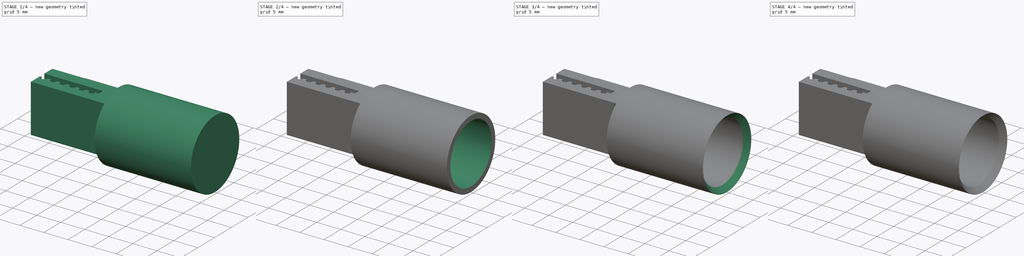
[diagram: build sequence overview — one tinted view per stage of 4, left to right]
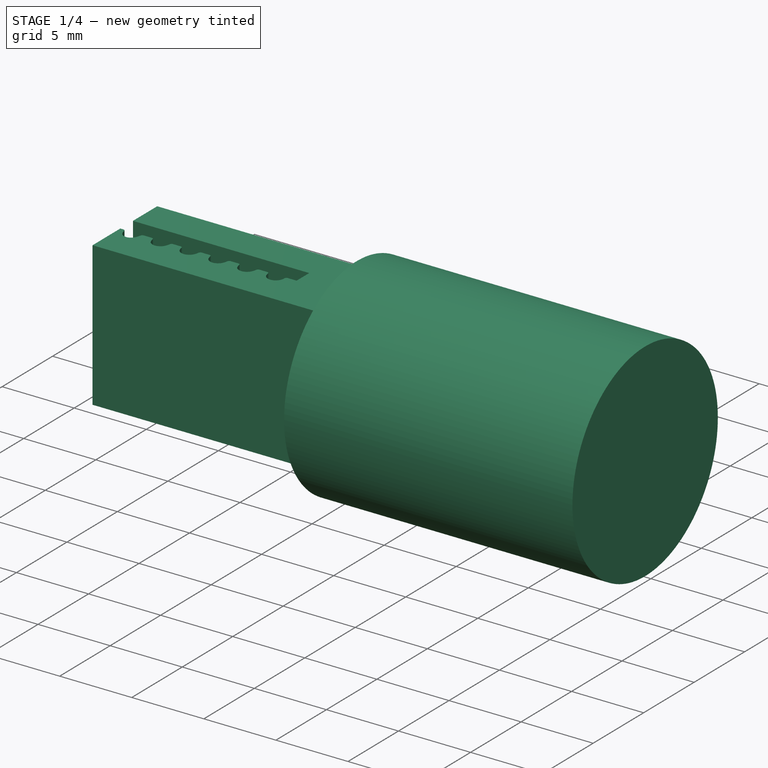
[diagram: stage 1 of 4 — iso view after this stage's code; geometry added in this stage tinted green]
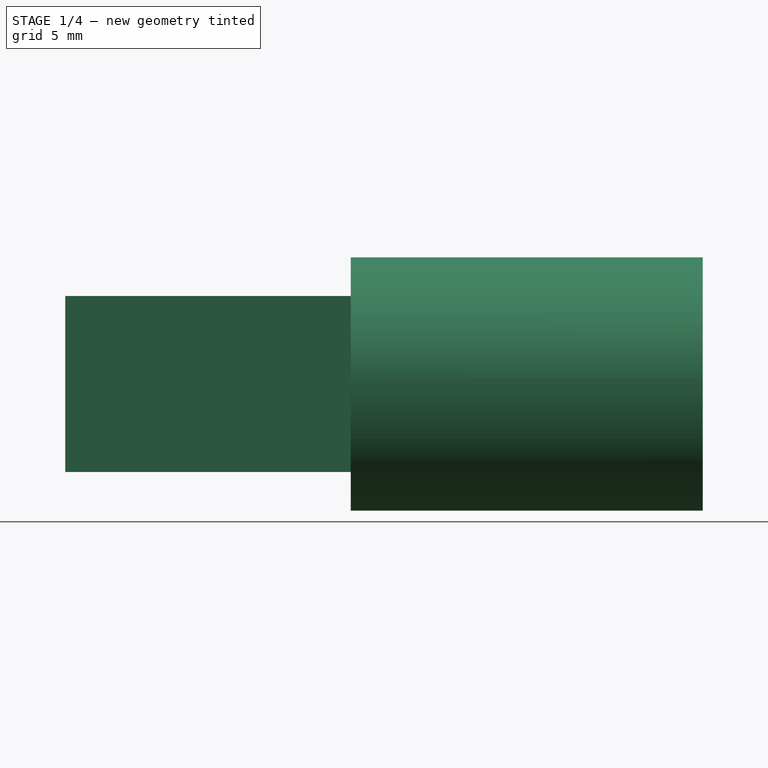
[diagram: stage 1 of 4 — front view after this stage's code; geometry added in this stage tinted green]
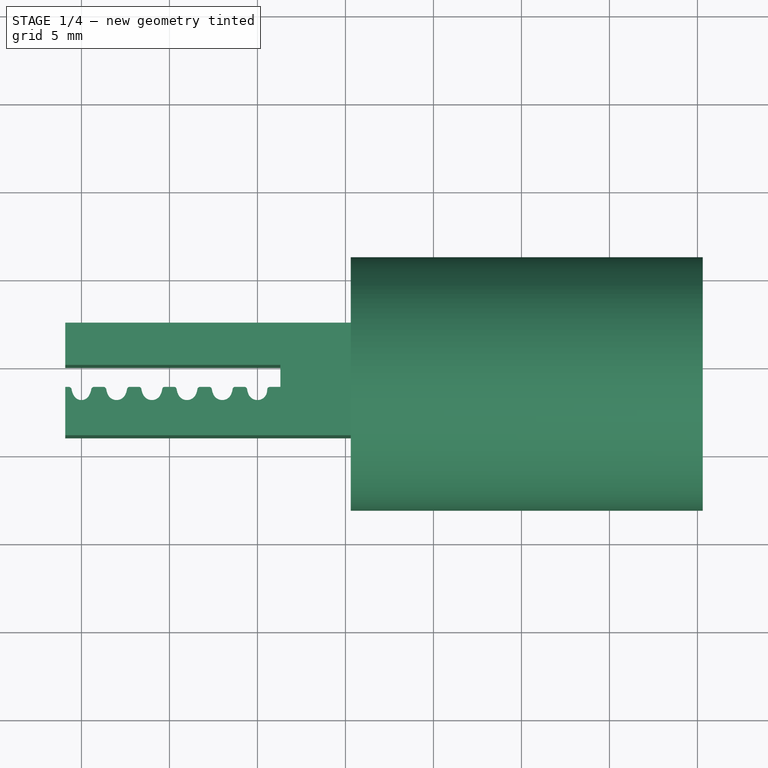
[diagram: stage 1 of 4 — top view after this stage's code; geometry added in this stage tinted green]
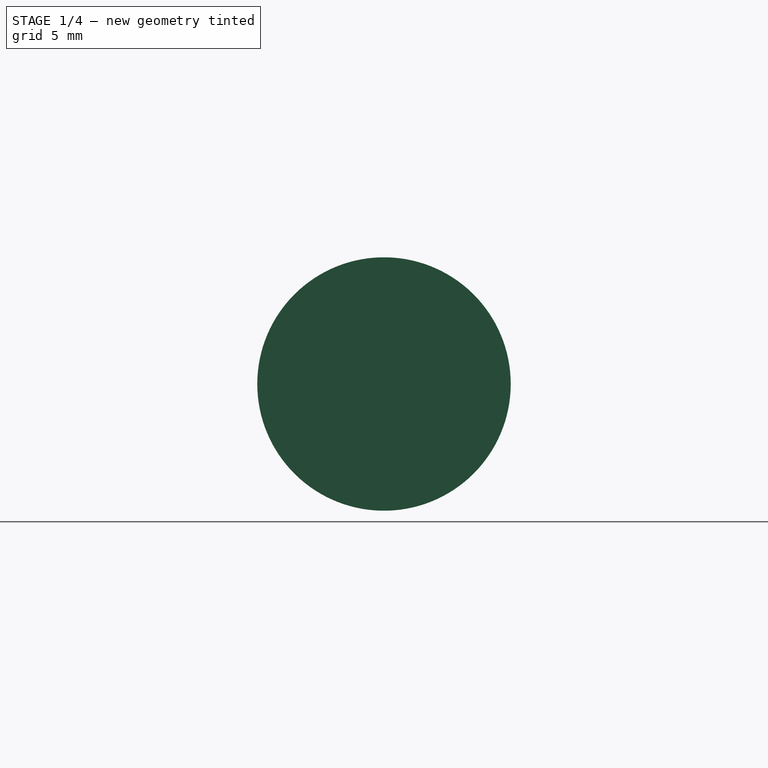
[diagram: stage 1 of 4 — right view after this stage's code; geometry added in this stage tinted green]
FCSTD DOCUMENT  (FreeCAD 0.19R)
Label: GT2_Clip
License: All rights reserved
LicenseURL: http://en.wikipedia.org/wiki/All_rights_reserved
objects: Sketcher::SketchObject×6, PartDesign::Pad×4, PartDesign::Plane×3, PartDesign::Pocket×2, PartDesign::Chamfer×2, PartDesign::Body×2, PartDesign::Fillet×1
note: 29 computed .brp shape members not serialized (recipe doc carries the construction recipe); baked Part::Feature solids carry a one-line shape summary decoded from their .brp

FEATURE [PartDesign::Body] Body  label="Slotted"
  Group = -> [Sketch,Pad,DatumPlane,Sketch001,Pad001,Sketch002,Pocket,Chamfer]
  Origin = -> Origin
  Tip = -> Chamfer
FEATURE [Sketcher::SketchObject] Sketch003
  MapMode = 5
  Support = -> [XY_Plane001]
  sketch-geometry (46):
    g0: LineSegment [constr] StartX=-44.4816 StartY=-2 StartZ=0 EndX=7.22751 EndY=-2 EndZ=0
    g1: LineSegment [constr] StartX=-13.5747 StartY=-1.25 StartZ=0 EndX=6.82881 EndY=-1.25 EndZ=0
    g2: ArcOfCircle CenterX=0.4 CenterY=-1.25 CenterZ=0 NormalX=0 NormalY=0 NormalZ=1 AngleXU=0 Radius=0.997214 StartAngle=3.27272 EndAngle=3.60524
    g3: ArcOfCircle CenterX=0 CenterY=-1.45 CenterZ=0 NormalX=0 NormalY=0 NormalZ=1 AngleXU=0 Radius=0.55 StartAngle=3.60524 EndAngle=5.91517
    g4: ArcOfCircle CenterX=-2 CenterY=-1.45 CenterZ=0 NormalX=0 NormalY=0 NormalZ=1 AngleXU=0 Radius=0.55 StartAngle=3.60524 EndAngle=5.81954
    g5: ArcOfCircle CenterX=-1.6 CenterY=-1.25 CenterZ=0 NormalX=0 NormalY=0 NormalZ=1 AngleXU=0 Radius=0.997214 StartAngle=3.27272 EndAngle=3.60524
    g6: LineSegment StartX=-1.26264 StartY=-1.25 StartZ=0 EndX=-0.737365 EndY=-1.25 EndZ=0
    g7: ArcOfCircle CenterX=-0.737365 CenterY=-1.4 CenterZ=0 NormalX=0 NormalY=0 NormalZ=1 AngleXU=0 Radius=0.15 StartAngle=0.131127 EndAngle=1.5708
    g8: ArcOfCircle CenterX=-2.4 CenterY=-1.25 CenterZ=0 NormalX=0 NormalY=0 NormalZ=1 AngleXU=0 Radius=0.997214 StartAngle=5.81954 EndAngle=6.15206
    g9: ArcOfCircle CenterX=-1.26264 CenterY=-1.4 CenterZ=0 NormalX=0 NormalY=0 NormalZ=1 AngleXU=0 Radius=0.15 StartAngle=1.5708 EndAngle=3.01047
    g10: ArcOfCircle CenterX=-4 CenterY=-1.45 CenterZ=0 NormalX=0 NormalY=0 NormalZ=1 AngleXU=0 Radius=0.55 StartAngle=3.60524 EndAngle=5.81954
    g11: LineSegment StartX=-3.26264 StartY=-1.25 StartZ=0 EndX=-2.73736 EndY=-1.25 EndZ=0
    g12: ArcOfCircle CenterX=-2.73736 CenterY=-1.4 CenterZ=0 NormalX=0 NormalY=0 NormalZ=1 AngleXU=0 Radius=0.15 StartAngle=0.131127 EndAngle=1.5708
    g13: ArcOfCircle CenterX=-4.4 CenterY=-1.25 CenterZ=0 NormalX=0 NormalY=0 NormalZ=1 AngleXU=0 Radius=0.997214 StartAngle=5.81954 EndAngle=6.15206
    g14: ArcOfCircle CenterX=-3.26264 CenterY=-1.4 CenterZ=0 NormalX=0 NormalY=0 NormalZ=1 AngleXU=0 Radius=0.15 StartAngle=1.5708 EndAngle=3.01047
    g15: ArcOfCircle CenterX=-3.6 CenterY=-1.25 CenterZ=0 NormalX=0 NormalY=0 NormalZ=1 AngleXU=0 Radius=0.997214 StartAngle=3.27272 EndAngle=3.60524
    g16: ArcOfCircle CenterX=-6 CenterY=-1.45 CenterZ=0 NormalX=0 NormalY=0 NormalZ=1 AngleXU=0 Radius=0.55 StartAngle=3.60524 EndAngle=5.81954
    g17: ArcOfCircle CenterX=-5.6 CenterY=-1.25 CenterZ=0 NormalX=0 NormalY=0 NormalZ=1 AngleXU=0 Radius=0.997214 StartAngle=3.27272 EndAngle=3.60524
    g18: LineSegment StartX=-5.26264 StartY=-1.25 StartZ=0 EndX=-4.73736 EndY=-1.25 EndZ=0
    g19: ArcOfCircle CenterX=-4.73736 CenterY=-1.4 CenterZ=0 NormalX=0 NormalY=0 NormalZ=1 AngleXU=0 Radius=0.15 StartAngle=0.131127 EndAngle=1.5708
    g20: ArcOfCircle CenterX=-6.4 CenterY=-1.25 CenterZ=0 NormalX=0 NormalY=0 NormalZ=1 AngleXU=0 Radius=0.997214 StartAngle=5.81954 EndAngle=6.15206
    g21: ArcOfCircle CenterX=-5.26264 CenterY=-1.4 CenterZ=0 NormalX=0 NormalY=0 NormalZ=1 AngleXU=0 Radius=0.15 StartAngle=1.5708 EndAngle=3.01047
    g22: ArcOfCircle CenterX=-8 CenterY=-1.45 CenterZ=0 NormalX=0 NormalY=0 NormalZ=1 AngleXU=0 Radius=0.55 StartAngle=3.60524 EndAngle=5.81954
    g23: ArcOfCircle CenterX=-7.6 CenterY=-1.25 CenterZ=0 NormalX=0 NormalY=0 NormalZ=1 AngleXU=0 Radius=0.997214 StartAngle=3.28586 EndAngle=3.60524
    g24: LineSegment StartX=-7.26264 StartY=-1.25 StartZ=0 EndX=-6.73736 EndY=-1.25 EndZ=0
    g25: ArcOfCircle CenterX=-6.73736 CenterY=-1.4 CenterZ=0 NormalX=0 NormalY=0 NormalZ=1 AngleXU=0 Radius=0.15 StartAngle=0.131127 EndAngle=1.5708
    g26: ArcOfCircle CenterX=-8.4 CenterY=-1.25 CenterZ=0 NormalX=0 NormalY=0 NormalZ=1 AngleXU=0 Radius=0.997214 StartAngle=5.81954 EndAngle=6.15206
    g27: ArcOfCircle CenterX=-7.26264 CenterY=-1.4 CenterZ=0 NormalX=0 NormalY=0 NormalZ=1 AngleXU=0 Radius=0.15 StartAngle=1.5708 EndAngle=3.01047
    g28: ArcOfCircle CenterX=-0.0676396 CenterY=-1.42392 CenterZ=0 NormalX=0 NormalY=0 NormalZ=1 AngleXU=0 Radius=0.622493 StartAngle=5.91517 EndAngle=6.31415
    g29: ArcOfCircle CenterX=0.704483 CenterY=-1.4 CenterZ=0 NormalX=0 NormalY=0 NormalZ=1 AngleXU=0 Radius=0.15 StartAngle=1.57083 EndAngle=3.17256
    g30: LineSegment StartX=0.704478 StartY=-1.25 StartZ=0 EndX=1.30448 EndY=-1.25 EndZ=0
    g31: LineSegment StartX=1.30448 StartY=-1.25 StartZ=0 EndX=1.30448 EndY=0 EndZ=0
    g32: ArcOfCircle CenterX=-10 CenterY=-1.50979 CenterZ=0 NormalX=0 NormalY=0 NormalZ=1 AngleXU=0 Radius=0.490211 StartAngle=3.7176 EndAngle=5.70718
    g33: ArcOfCircle CenterX=-9.6 CenterY=-1.25 CenterZ=0 NormalX=0 NormalY=0 NormalZ=1 AngleXU=0 Radius=0.96717 StartAngle=3.2897 EndAngle=3.7176
    g34: LineSegment StartX=-9.27782 StartY=-1.25 StartZ=0 EndX=-8.75255 EndY=-1.25 EndZ=0
    g35: ArcOfCircle CenterX=-8.75255 CenterY=-1.41743 CenterZ=0 NormalX=0 NormalY=0 NormalZ=1 AngleXU=0 Radius=0.167433 StartAngle=0.144263 EndAngle=1.5708
    g36: ArcOfCircle CenterX=-10.4 CenterY=-1.25 CenterZ=0 NormalX=0 NormalY=0 NormalZ=1 AngleXU=0 Radius=0.96717 StartAngle=5.70718 EndAngle=6.13507
    g37: ArcOfCircle CenterX=-9.27782 CenterY=-1.41743 CenterZ=0 NormalX=0 NormalY=0 NormalZ=1 AngleXU=0 Radius=0.167433 StartAngle=1.5708 EndAngle=2.99348
    g38: ArcOfCircle CenterX=-10.7222 CenterY=-1.41743 CenterZ=0 NormalX=0 NormalY=0 NormalZ=1 AngleXU=0 Radius=0.167433 StartAngle=0.148111 EndAngle=1.5708
    g39: LineSegment StartX=-10.7222 StartY=-1.25 StartZ=0 EndX=-10.9222 EndY=-1.25 EndZ=0
    g40: LineSegment StartX=-10.9222 StartY=-1.25 StartZ=0 EndX=-10.9222 EndY=-4 EndZ=0
    g41: LineSegment StartX=5.30448 StartY=-4 StartZ=0 EndX=-10.9222 EndY=-4 EndZ=0
    g42: LineSegment StartX=-10.9222 StartY=0 StartZ=0 EndX=1.30448 EndY=0 EndZ=0
    g43: LineSegment StartX=-10.9222 StartY=0 StartZ=0 EndX=-10.9222 EndY=2.4 EndZ=0
    g44: LineSegment StartX=-10.9222 StartY=2.4 StartZ=0 EndX=5.30448 EndY=2.4 EndZ=0
    g45: LineSegment StartX=5.30448 StartY=2.4 StartZ=0 EndX=5.30448 EndY=-4 EndZ=0
  constraints (129):
    c: Horizontal(g0)
    c: Horizontal(g1)
    c: DistanceY(g0,g1) = 0.75
    c: PointOnObject(g2,g1)
    c: PointOnObject(g3,g-2)
    c: Tangent(g3,g0)
    c: Radius(g3) = 0.55
    c: DistanceX(g2) = 0.4
    c: Tangent(g3,g2) = -1.5708
    c: Equal(g3,g4) = 0.55
    c: Tangent(g4,g5) = -1.5708
    c: DistanceX(g4,g3) = 2
    c: Tangent(g4,g0)
    c: PointOnObject(g6,g1)
    c: PointOnObject(g6,g1)
    c: Radius(g7) = 0.15
    c: Tangent(g7,g2) = 1.5708
    c: Tangent(g7,g6) = 1.5708
    c: Tangent(g9,g6) = 1.5708
    c: Tangent(g9,g8) = 1.5708
    c: Tangent(g8,g4) = -1.5708
    c: PointOnObject(g8,g1)
    c: DistanceX(g8,g4) = 0.4
    c: Equal(g7,g12) = 0.15
    c: Tangent(g12,g11) = 1.5708
    c: Tangent(g14,g11) = 1.5708
    c: Tangent(g14,g13) = 1.5708
    c: Tangent(g13,g10) = -1.5708
    c: DistanceX(g13,g10) = 0.4
    c: PointOnObject(g11,g1)
    c: PointOnObject(g11,g1)
    c: Tangent(g10,g0)
    c: DistanceX(g10,g4) = 2
    c: Equal(g4,g10)
    c: Equal(g12,g14)
    c: Equal(g9,g7)
    c: Tangent(g5,g12) = 1.5708
    c: DistanceX(g4,g5) = 0.4
    c: Equal(g5,g8)
    c: Equal(g5,g13)
    c: Tangent(g16,g17) = -1.5708
    c: Equal(g7,g19) = 0.15
    c: Tangent(g19,g15) = 1.5708
    c: Tangent(g19,g18) = 1.5708
    c: Tangent(g21,g18) = 1.5708
    c: Tangent(g21,g20) = 1.5708
    c: Tangent(g20,g16) = -1.5708
    c: DistanceX(g20,g16) = 0.4
    c: Tangent(g22,g23) = -1.5708
    c: Equal(g19,g25) = 0.15
    c: Tangent(g25,g24) = 1.5708
    c: Tangent(g27,g24) = 1.5708
    c: Tangent(g27,g26) = 1.5708
    c: Tangent(g26,g22) = -1.5708
    c: DistanceX(g26,g22) = 0.4
    c: DistanceX(g22,g16) = 2
    c: Equal(g16,g22)
    c: Equal(g25,g27)
    c: Equal(g21,g19)
    c: Tangent(g17,g25) = 1.5708
    c: DistanceX(g16,g17) = 0.4
    c: Equal(g17,g26)
    c: DistanceX(g16,g10) = 2
    c: PointOnObject(g18,g1)
    c: Tangent(g16,g0)
    c: Tangent(g22,g0)
    c: Tangent(g10,g15) = -1.5708
    c: PointOnObject(g24,g1)
    c: Horizontal(g18)
    c: Horizontal(g24)
    c: Equal(g20,g15)
    c: DistanceX(g10,g15) = 0.4
    c: DistanceX(g22,g23) = 0.4
    c: Equal(g15,g13)
    c: Equal(g20,g17)
    c: PointOnObject(g17,g1)
    c: Tangent(g29,g28) = 1.5708
    c: PointOnObject(g29,g1)
    c: Tangent(g3,g28) = -1.5708
    c: Equal(g29,g9)
    c: Tangent(g29,g1)
    c: Coincident(g30,g29)
    c: PointOnObject(g30,g1)
    c: Coincident(g31,g30)
    c: Vertical(g31)
    c: Tangent(g32,g33) = -1.5708
    c: Tangent(g35,g34) = 1.5708
    c: Tangent(g37,g34) = 1.5708
    c: Tangent(g37,g36) = 1.5708
    c: Tangent(g36,g32) = -1.5708
    c: DistanceX(g36,g32) = 0.4
    c: Equal(g35,g37)
    c: Horizontal(g34)
    c: DistanceX(g32,g33) = 0.4
    c: PointOnObject(g34,g1)
    c: Tangent(g23,g35) = 1.5708
    c: DistanceX(g32,g22) = 2
    c: Tangent(g32,g0)
    c: Equal(g34,g24)
    c: PointOnObject(g33,g1)
    c: PointOnObject(g36,g1)
    c: Equal(g23,g26)
    c: Tangent(g33,g38) = 1.5708
    c: Tangent(g38,g1)
    c: PointOnObject(g38,g1)
    c: Equal(g38,g37)
    c: Coincident(g39,g38)
    c: PointOnObject(g39,g1)
    c: Coincident(g40,g39)
    c: Vertical(g40)
    c: Coincident(g41,g40)
    c: Horizontal(g41)
    c: PointOnObject(g42,g-1)
    c: Horizontal(g42)
    c: Coincident(g31,g42)
    c: Coincident(g42,g43)
    c: Vertical(g43)
    c: Coincident(g43,g44)
    c: Horizontal(g44)
    c: Coincident(g44,g45)
    c: Coincident(g45,g41)
    c: Vertical(g45)
    c: Equal(g41,g44)
    c: DistanceY(g0) = -2
    c: DistanceY(g41,g0) = 2
    c: DistanceY(g44) = 2.4
    c: DistanceX(g39,g39) = 0.2
    c: DistanceX(g30,g30) = 0.6
    c: DistanceX(g30,g41) = 4
FEATURE [PartDesign::Pad] Pad002
  Direction = (1,1,1)
  Length = 10
  Length2 = 100
  Midplane = true
  Profile = -> Sketch003
  Type = 0
FEATURE [PartDesign::Plane] DatumPlane001
  AttachmentOffset = pos=(0,0,0) rot=(1,0,0;1.5708rad)
  Length = 60.0304
  MapMode = 5
  Placement = pos=(5.30448,0,0) rot=(0.707107,0.707107,0;3.14159rad)
  ResizeMode = 0
  Support = -> [Pad002]
  Width = 60.3349
FEATURE [PartDesign::Plane] DatumPlane002
  Length = 60
  MapMode = 5
  Placement = pos=(5.30448,0,0) rot=(0.57735,0.57735,0.57735;2.0944rad)
  ResizeMode = 0
  Support = -> [Pad002]
  Width = 60
FEATURE [Sketcher::SketchObject] Sketch004
  MapMode = 5
  Placement = pos=(5.30448,0,0) rot=(0.57735,0.57735,0.57735;2.0944rad)
  Support = -> [DatumPlane002]
  sketch-geometry (1):
    g0: Circle CenterX=-1 CenterY=0 CenterZ=0 NormalX=0 NormalY=0 NormalZ=1 AngleXU=0 Radius=7.2
  constraints (3):
    c: PointOnObject(g0,g-1)
    c: DistanceX(g0,g-1) = 1
    c: Radius(g0) = 7.2
FEATURE [PartDesign::Pad] Pad003
  BaseFeature = -> Pad002
  Direction = (1,1,1)
  Length = 20
  Length2 = 100
  Profile = -> Sketch004
  Type = 0
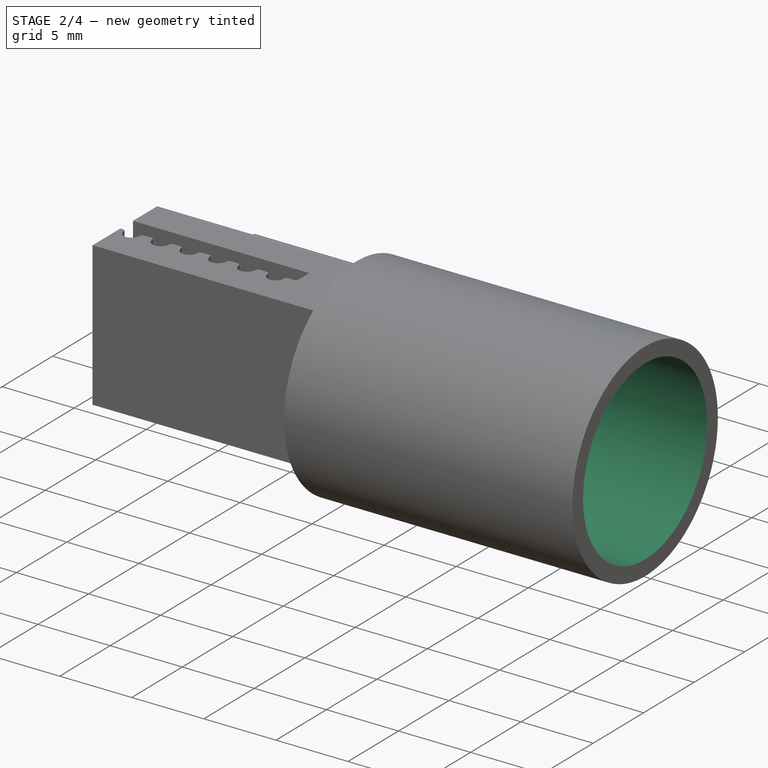
[diagram: stage 2 of 4 — iso view after this stage's code; geometry added in this stage tinted green]
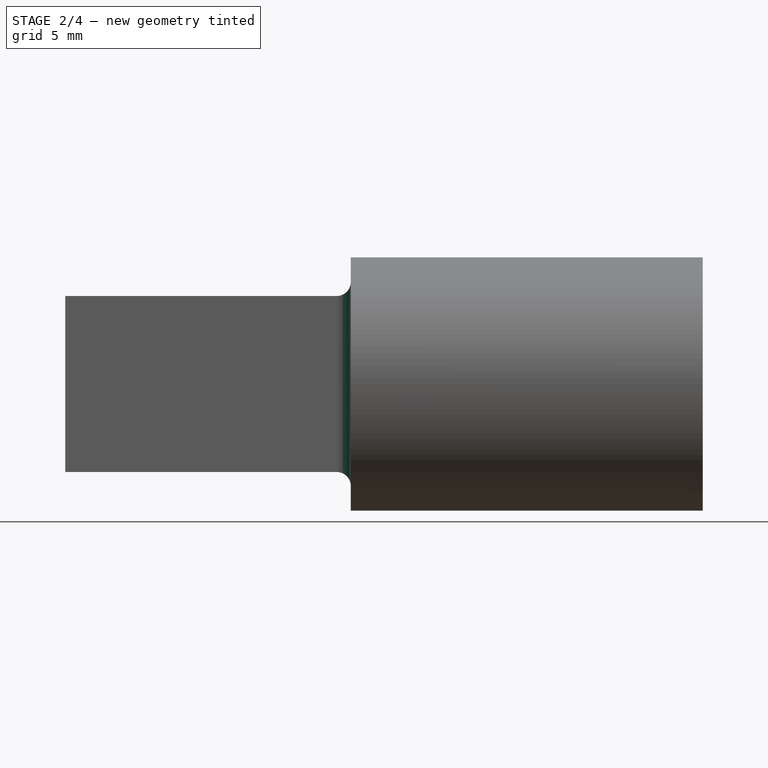
[diagram: stage 2 of 4 — front view after this stage's code; geometry added in this stage tinted green]
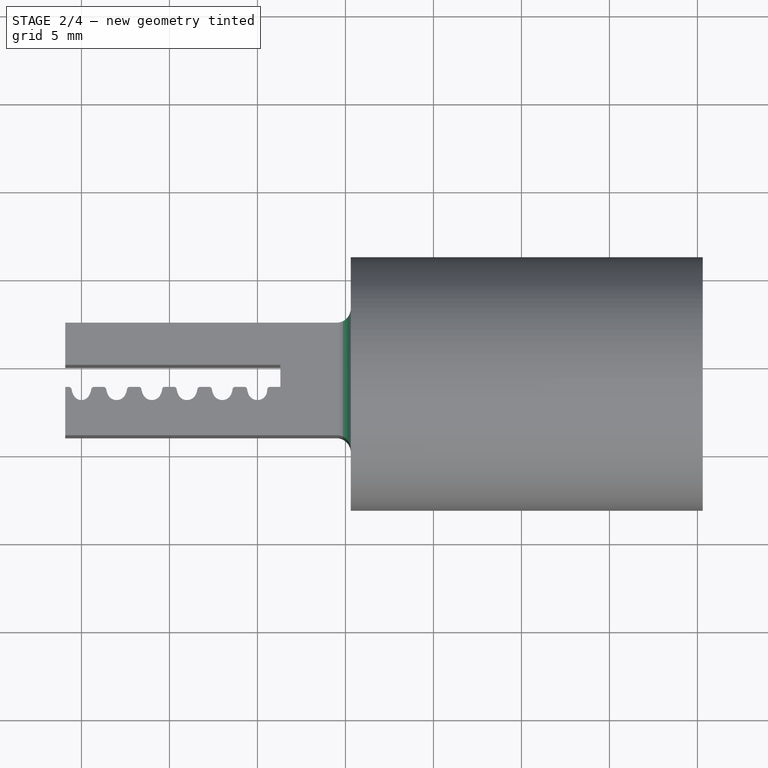
[diagram: stage 2 of 4 — top view after this stage's code; geometry added in this stage tinted green]
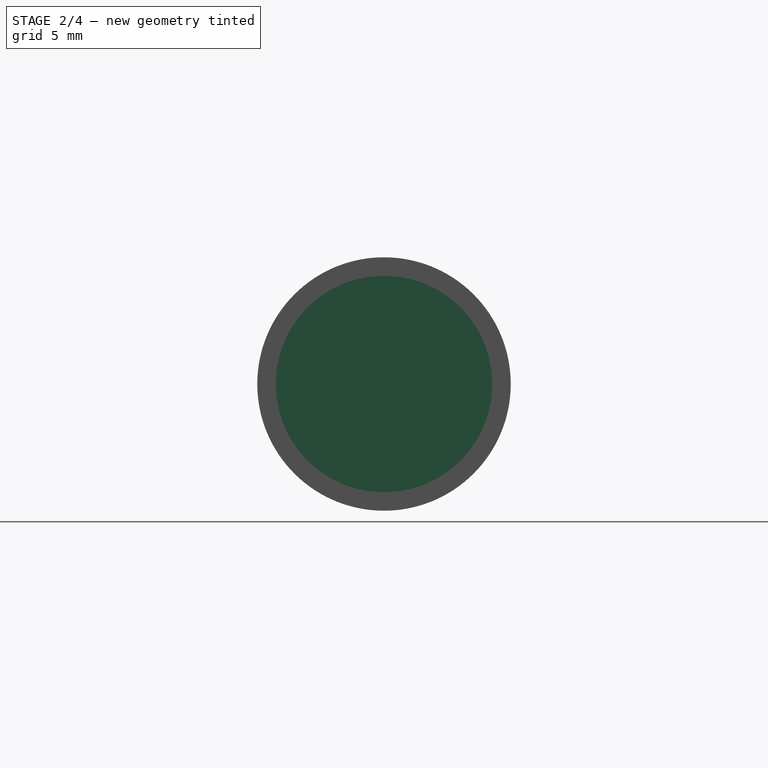
[diagram: stage 2 of 4 — right view after this stage's code; geometry added in this stage tinted green]
FEATURE [Sketcher::SketchObject] Sketch005
  ExternalGeometry = -> [Pad003]
  MapMode = 5
  Placement = pos=(25.3045,0,0) rot=(0.57735,0.57735,0.57735;2.0944rad)
  Support = -> [Pad003]
  sketch-geometry (1):
    g0: Circle CenterX=-1 CenterY=0 CenterZ=0 NormalX=0 NormalY=0 NormalZ=1 AngleXU=0 Radius=6.15
  constraints (2):
    c: Coincident(g-3,g0)
    c: Radius(g0) = 6.15
FEATURE [PartDesign::Pocket] Pocket001
  BaseFeature = -> Pad003
  Length = 15
  Length2 = 100
  Profile = -> Sketch005
  Type = 0
FEATURE [PartDesign::Fillet] Fillet
  Base = -> Pocket001 [Edge6,Edge5,Edge4,Edge7]
  BaseFeature = -> Pocket001
  Radius = 0.8
  SupportTransform = false
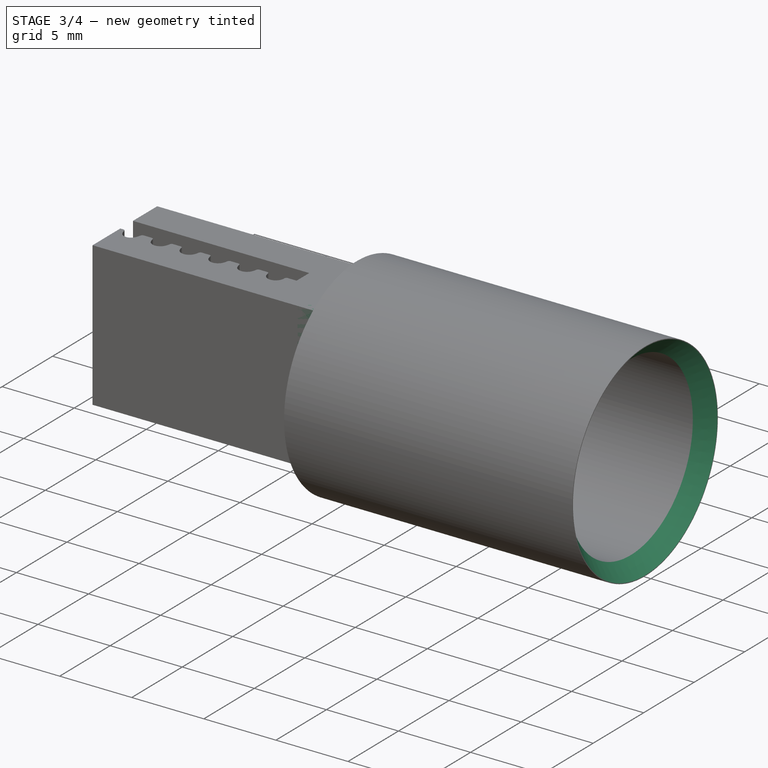
[diagram: stage 3 of 4 — iso view after this stage's code; geometry added in this stage tinted green]
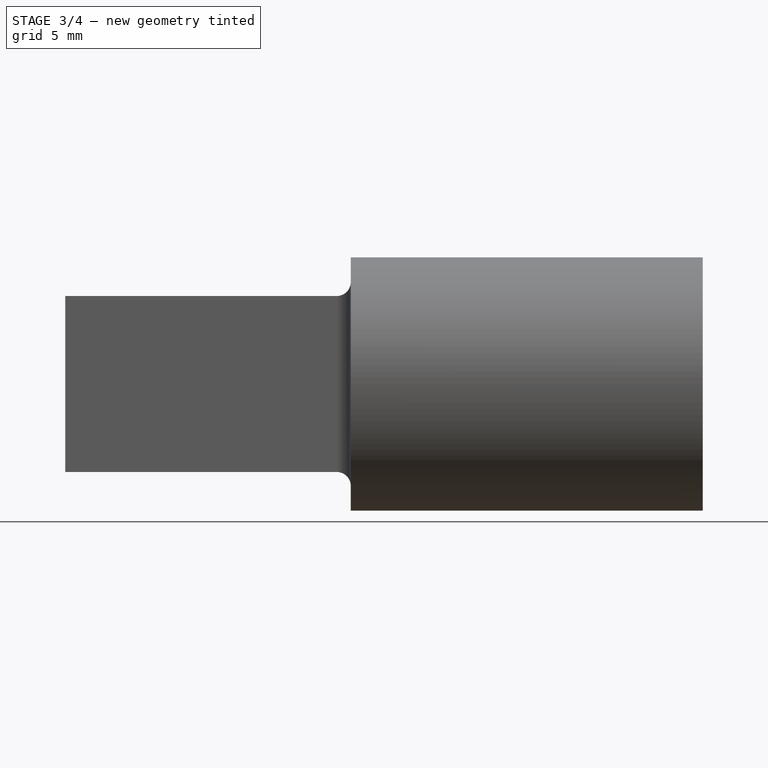
[diagram: stage 3 of 4 — front view after this stage's code; geometry added in this stage tinted green]
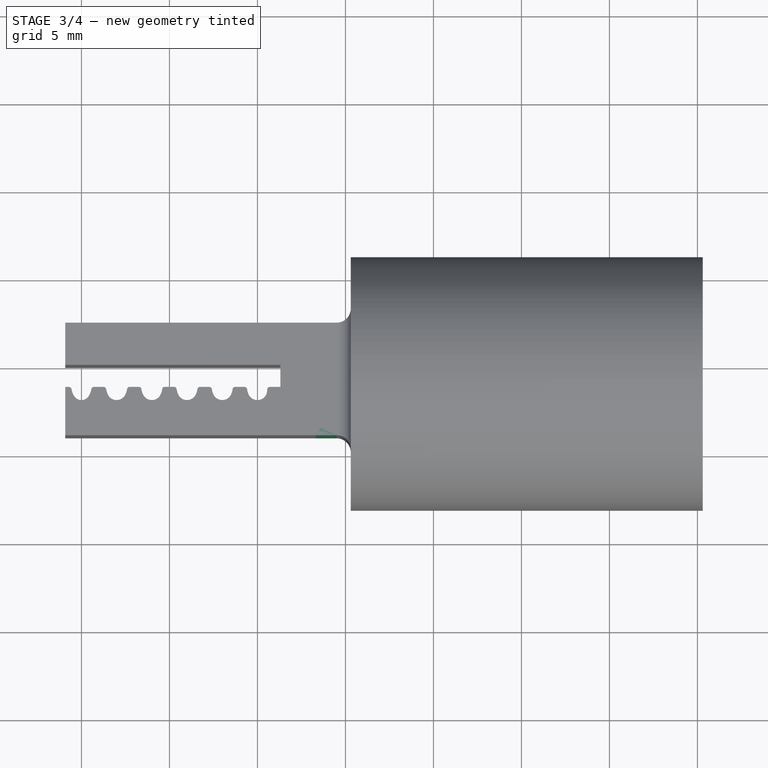
[diagram: stage 3 of 4 — top view after this stage's code; geometry added in this stage tinted green]
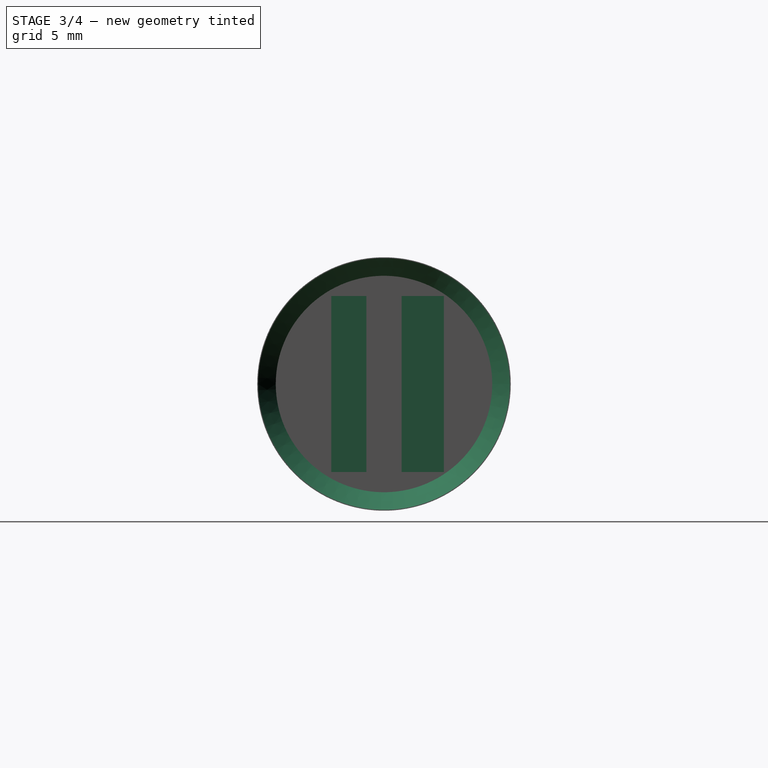
[diagram: stage 3 of 4 — right view after this stage's code; geometry added in this stage tinted green]
FEATURE [Sketcher::SketchObject] Sketch
  MapMode = 5
  Support = -> [XY_Plane]
  sketch-geometry (46):
    g0: LineSegment [constr] StartX=-44.4816 StartY=-2 StartZ=0 EndX=7.22751 EndY=-2 EndZ=0
    g1: LineSegment [constr] StartX=-13.5747 StartY=-1.25 StartZ=0 EndX=6.82881 EndY=-1.25 EndZ=0
    g2: ArcOfCircle CenterX=0.4 CenterY=-1.25 CenterZ=0 NormalX=0 NormalY=0 NormalZ=1 AngleXU=0 Radius=0.997214 StartAngle=3.27272 EndAngle=3.60524
    g3: ArcOfCircle CenterX=0 CenterY=-1.45 CenterZ=0 NormalX=0 NormalY=0 NormalZ=1 AngleXU=0 Radius=0.55 StartAngle=3.60524 EndAngle=5.91517
    g4: ArcOfCircle CenterX=-2 CenterY=-1.45 CenterZ=0 NormalX=0 NormalY=0 NormalZ=1 AngleXU=0 Radius=0.55 StartAngle=3.60524 EndAngle=5.81954
    g5: ArcOfCircle CenterX=-1.6 CenterY=-1.25 CenterZ=0 NormalX=0 NormalY=0 NormalZ=1 AngleXU=0 Radius=0.997214 StartAngle=3.27272 EndAngle=3.60524
    g6: LineSegment StartX=-1.26264 StartY=-1.25 StartZ=0 EndX=-0.737365 EndY=-1.25 EndZ=0
    g7: ArcOfCircle CenterX=-0.737365 CenterY=-1.4 CenterZ=0 NormalX=0 NormalY=0 NormalZ=1 AngleXU=0 Radius=0.15 StartAngle=0.131127 EndAngle=1.5708
    g8: ArcOfCircle CenterX=-2.4 CenterY=-1.25 CenterZ=0 NormalX=0 NormalY=0 NormalZ=1 AngleXU=0 Radius=0.997214 StartAngle=5.81954 EndAngle=6.15206
    g9: ArcOfCircle CenterX=-1.26264 CenterY=-1.4 CenterZ=0 NormalX=0 NormalY=0 NormalZ=1 AngleXU=0 Radius=0.15 StartAngle=1.5708 EndAngle=3.01047
    g10: ArcOfCircle CenterX=-4 CenterY=-1.45 CenterZ=0 NormalX=0 NormalY=0 NormalZ=1 AngleXU=0 Radius=0.55 StartAngle=3.60524 EndAngle=5.81954
    g11: LineSegment StartX=-3.26264 StartY=-1.25 StartZ=0 EndX=-2.73736 EndY=-1.25 EndZ=0
    g12: ArcOfCircle CenterX=-2.73736 CenterY=-1.4 CenterZ=0 NormalX=0 NormalY=0 NormalZ=1 AngleXU=0 Radius=0.15 StartAngle=0.131127 EndAngle=1.5708
    g13: ArcOfCircle CenterX=-4.4 CenterY=-1.25 CenterZ=0 NormalX=0 NormalY=0 NormalZ=1 AngleXU=0 Radius=0.997214 StartAngle=5.81954 EndAngle=6.15206
    g14: ArcOfCircle CenterX=-3.26264 CenterY=-1.4 CenterZ=0 NormalX=0 NormalY=0 NormalZ=1 AngleXU=0 Radius=0.15 StartAngle=1.5708 EndAngle=3.01047
    g15: ArcOfCircle CenterX=-3.6 CenterY=-1.25 CenterZ=0 NormalX=0 NormalY=0 NormalZ=1 AngleXU=0 Radius=0.997214 StartAngle=3.27272 EndAngle=3.60524
    g16: ArcOfCircle CenterX=-6 CenterY=-1.45 CenterZ=0 NormalX=0 NormalY=0 NormalZ=1 AngleXU=0 Radius=0.55 StartAngle=3.60524 EndAngle=5.81954
    g17: ArcOfCircle CenterX=-5.6 CenterY=-1.25 CenterZ=0 NormalX=0 NormalY=0 NormalZ=1 AngleXU=0 Radius=0.997214 StartAngle=3.27272 EndAngle=3.60524
    g18: LineSegment StartX=-5.26264 StartY=-1.25 StartZ=0 EndX=-4.73736 EndY=-1.25 EndZ=0
    g19: ArcOfCircle CenterX=-4.73736 CenterY=-1.4 CenterZ=0 NormalX=0 NormalY=0 NormalZ=1 AngleXU=0 Radius=0.15 StartAngle=0.131127 EndAngle=1.5708
    g20: ArcOfCircle CenterX=-6.4 CenterY=-1.25 CenterZ=0 NormalX=0 NormalY=0 NormalZ=1 AngleXU=0 Radius=0.997214 StartAngle=5.81954 EndAngle=6.15206
    g21: ArcOfCircle CenterX=-5.26264 CenterY=-1.4 CenterZ=0 NormalX=0 NormalY=0 NormalZ=1 AngleXU=0 Radius=0.15 StartAngle=1.5708 EndAngle=3.01047
    g22: ArcOfCircle CenterX=-8 CenterY=-1.45 CenterZ=0 NormalX=0 NormalY=0 NormalZ=1 AngleXU=0 Radius=0.55 StartAngle=3.60524 EndAngle=5.81954
    g23: ArcOfCircle CenterX=-7.6 CenterY=-1.25 CenterZ=0 NormalX=0 NormalY=0 NormalZ=1 AngleXU=0 Radius=0.997214 StartAngle=3.28586 EndAngle=3.60524
    g24: LineSegment StartX=-7.26264 StartY=-1.25 StartZ=0 EndX=-6.73736 EndY=-1.25 EndZ=0
    g25: ArcOfCircle CenterX=-6.73736 CenterY=-1.4 CenterZ=0 NormalX=0 NormalY=0 NormalZ=1 AngleXU=0 Radius=0.15 StartAngle=0.131127 EndAngle=1.5708
    g26: ArcOfCircle CenterX=-8.4 CenterY=-1.25 CenterZ=0 NormalX=0 NormalY=0 NormalZ=1 AngleXU=0 Radius=0.997214 StartAngle=5.81954 EndAngle=6.15206
    g27: ArcOfCircle CenterX=-7.26264 CenterY=-1.4 CenterZ=0 NormalX=0 NormalY=0 NormalZ=1 AngleXU=0 Radius=0.15 StartAngle=1.5708 EndAngle=3.01047
    g28: ArcOfCircle CenterX=-0.0676396 CenterY=-1.42392 CenterZ=0 NormalX=0 NormalY=0 NormalZ=1 AngleXU=0 Radius=0.622493 StartAngle=5.91517 EndAngle=6.31415
    g29: ArcOfCircle CenterX=0.704483 CenterY=-1.4 CenterZ=0 NormalX=0 NormalY=0 NormalZ=1 AngleXU=0 Radius=0.15 StartAngle=1.5708 EndAngle=3.17256
    g30: LineSegment StartX=0.704483 StartY=-1.25 StartZ=0 EndX=1.30448 EndY=-1.25 EndZ=0
    g31: LineSegment StartX=1.30448 StartY=-1.25 StartZ=0 EndX=1.30448 EndY=0 EndZ=0
    g32: ArcOfCircle CenterX=-10 CenterY=-1.50979 CenterZ=0 NormalX=0 NormalY=0 NormalZ=1 AngleXU=0 Radius=0.490211 StartAngle=3.7176 EndAngle=5.70718
    g33: ArcOfCircle CenterX=-9.6 CenterY=-1.25 CenterZ=0 NormalX=0 NormalY=0 NormalZ=1 AngleXU=0 Radius=0.96717 StartAngle=3.2897 EndAngle=3.7176
    g34: LineSegment StartX=-9.27782 StartY=-1.25 StartZ=0 EndX=-8.75255 EndY=-1.25 EndZ=0
    g35: ArcOfCircle CenterX=-8.75255 CenterY=-1.41743 CenterZ=0 NormalX=0 NormalY=0 NormalZ=1 AngleXU=0 Radius=0.167433 StartAngle=0.144263 EndAngle=1.5708
    g36: ArcOfCircle CenterX=-10.4 CenterY=-1.25 CenterZ=0 NormalX=0 NormalY=0 NormalZ=1 AngleXU=0 Radius=0.96717 StartAngle=5.70718 EndAngle=6.13507
    g37: ArcOfCircle CenterX=-9.27782 CenterY=-1.41743 CenterZ=0 NormalX=0 NormalY=0 NormalZ=1 AngleXU=0 Radius=0.167433 StartAngle=1.5708 EndAngle=2.99348
    g38: ArcOfCircle CenterX=-10.7222 CenterY=-1.41743 CenterZ=0 NormalX=0 NormalY=0 NormalZ=1 AngleXU=0 Radius=0.167433 StartAngle=0.148111 EndAngle=1.5708
    g39: LineSegment StartX=-10.7222 StartY=-1.25 StartZ=0 EndX=-10.9222 EndY=-1.25 EndZ=0
    g40: LineSegment StartX=-10.9222 StartY=-1.25 StartZ=0 EndX=-10.9222 EndY=-4 EndZ=0
    g41: LineSegment StartX=3.30448 StartY=-4 StartZ=0 EndX=-10.9222 EndY=-4 EndZ=0
    g42: LineSegment StartX=-10.9222 StartY=0 StartZ=0 EndX=1.30448 EndY=0 EndZ=0
    g43: LineSegment StartX=-10.9222 StartY=0 StartZ=0 EndX=-10.9222 EndY=2.4 EndZ=0
    g44: LineSegment StartX=-10.9222 StartY=2.4 StartZ=0 EndX=3.30448 EndY=2.4 EndZ=0
    g45: LineSegment StartX=3.30448 StartY=2.4 StartZ=0 EndX=3.30448 EndY=-4 EndZ=0
  constraints (129):
    c: Horizontal(g0)
    c: Horizontal(g1)
    c: DistanceY(g0,g1) = 0.75
    c: PointOnObject(g2,g1)
    c: PointOnObject(g3,g-2)
    c: Tangent(g3,g0)
    c: Radius(g3) = 0.55
    c: DistanceX(g2) = 0.4
    c: Tangent(g3,g2) = -1.5708
    c: Equal(g3,g4) = 0.55
    c: Tangent(g4,g5) = -1.5708
    c: DistanceX(g4,g3) = 2
    c: Tangent(g4,g0)
    c: PointOnObject(g6,g1)
    c: PointOnObject(g6,g1)
    c: Radius(g7) = 0.15
    c: Tangent(g7,g2) = 1.5708
    c: Tangent(g7,g6) = 1.5708
    c: Tangent(g9,g6) = 1.5708
    c: Tangent(g9,g8) = 1.5708
    c: Tangent(g8,g4) = -1.5708
    c: PointOnObject(g8,g1)
    c: DistanceX(g8,g4) = 0.4
    c: Equal(g7,g12) = 0.15
    c: Tangent(g12,g11) = 1.5708
    c: Tangent(g14,g11) = 1.5708
    c: Tangent(g14,g13) = 1.5708
    c: Tangent(g13,g10) = -1.5708
    c: DistanceX(g13,g10) = 0.4
    c: PointOnObject(g11,g1)
    c: PointOnObject(g11,g1)
    c: Tangent(g10,g0)
    c: DistanceX(g10,g4) = 2
    c: Equal(g4,g10)
    c: Equal(g12,g14)
    c: Equal(g9,g7)
    c: Tangent(g5,g12) = 1.5708
    c: DistanceX(g4,g5) = 0.4
    c: Equal(g5,g8)
    c: Equal(g5,g13)
    c: Tangent(g16,g17) = -1.5708
    c: Equal(g7,g19) = 0.15
    c: Tangent(g19,g15) = 1.5708
    c: Tangent(g19,g18) = 1.5708
    c: Tangent(g21,g18) = 1.5708
    c: Tangent(g21,g20) = 1.5708
    c: Tangent(g20,g16) = -1.5708
    c: DistanceX(g20,g16) = 0.4
    c: Tangent(g22,g23) = -1.5708
    c: Equal(g19,g25) = 0.15
    c: Tangent(g25,g24) = 1.5708
    c: Tangent(g27,g24) = 1.5708
    c: Tangent(g27,g26) = 1.5708
    c: Tangent(g26,g22) = -1.5708
    c: DistanceX(g26,g22) = 0.4
    c: DistanceX(g22,g16) = 2
    c: Equal(g16,g22)
    c: Equal(g25,g27)
    c: Equal(g21,g19)
    c: Tangent(g17,g25) = 1.5708
    c: DistanceX(g16,g17) = 0.4
    c: Equal(g17,g26)
    c: DistanceX(g16,g10) = 2
    c: PointOnObject(g18,g1)
    c: Tangent(g16,g0)
    c: Tangent(g22,g0)
    c: Tangent(g10,g15) = -1.5708
    c: PointOnObject(g24,g1)
    c: Horizontal(g18)
    c: Horizontal(g24)
    c: Equal(g20,g15)
    c: DistanceX(g10,g15) = 0.4
    c: DistanceX(g22,g23) = 0.4
    c: Equal(g15,g13)
    c: Equal(g20,g17)
    c: PointOnObject(g17,g1)
    c: Tangent(g29,g28) = 1.5708
    c: PointOnObject(g29,g1)
    c: Tangent(g3,g28) = -1.5708
    c: Equal(g29,g9)
    c: Tangent(g29,g1)
    c: Coincident(g30,g29)
    c: PointOnObject(g30,g1)
    c: Coincident(g31,g30)
    c: Vertical(g31)
    c: Tangent(g32,g33) = -1.5708
    c: Tangent(g35,g34) = 1.5708
    c: Tangent(g37,g34) = 1.5708
    c: Tangent(g37,g36) = 1.5708
    c: Tangent(g36,g32) = -1.5708
    c: DistanceX(g36,g32) = 0.4
    c: Equal(g35,g37)
    c: Horizontal(g34)
    c: DistanceX(g32,g33) = 0.4
    c: PointOnObject(g34,g1)
    c: Tangent(g23,g35) = 1.5708
    c: DistanceX(g32,g22) = 2
    c: Tangent(g32,g0)
    c: Equal(g34,g24)
    c: PointOnObject(g33,g1)
    c: PointOnObject(g36,g1)
    c: Equal(g23,g26)
    c: Tangent(g33,g38) = 1.5708
    c: Tangent(g38,g1)
    c: PointOnObject(g38,g1)
    c: Equal(g38,g37)
    c: Coincident(g39,g38)
    c: PointOnObject(g39,g1)
    c: Coincident(g40,g39)
    c: Vertical(g40)
    c: Coincident(g41,g40)
    c: Horizontal(g41)
    c: PointOnObject(g42,g-1)
    c: Horizontal(g42)
    c: Coincident(g31,g42)
    c: Coincident(g42,g43)
    c: Vertical(g43)
    c: Coincident(g43,g44)
    c: Horizontal(g44)
    c: Coincident(g44,g45)
    c: Coincident(g45,g41)
    c: Vertical(g45)
    c: Equal(g41,g44)
    c: DistanceY(g0) = -2
    c: DistanceY(g41,g0) = 2
    c: DistanceY(g44) = 2.4
    c: DistanceX(g39,g39) = 0.2
    c: DistanceX(g30,g30) = 0.6
    c: DistanceX(g30,g41) = 2
FEATURE [PartDesign::Pad] Pad
  Direction = (1,1,1)
  Length = 10
  Length2 = 100
  Midplane = true
  Profile = -> Sketch
  Type = 0
FEATURE [PartDesign::Plane] DatumPlane
  AttachmentOffset = pos=(0,0,0) rot=(1,0,0;1.5708rad)
  Length = 60
  MapMode = 5
  Placement = pos=(3.30448,0,0) rot=(0.707107,0.707107,0;3.14159rad)
  ResizeMode = 0
  Support = -> [Pad]
  Width = 60
FEATURE [Sketcher::SketchObject] Sketch001
  ExternalGeometry = -> [Pad]
  MapMode = 5
  Placement = pos=(3.30448,0,0) rot=(0.707107,0.707107,0;3.14159rad)
  Support = -> [DatumPlane]
  sketch-geometry (8):
    g0: LineSegment StartX=-2 StartY=1.4 StartZ=0 EndX=4e-16 EndY=1.4 EndZ=0
    g1: LineSegment StartX=-2 StartY=13.4 StartZ=0 EndX=-4 EndY=13.4 EndZ=0
    g2: LineSegment StartX=-4 StartY=13.4 StartZ=0 EndX=-4 EndY=0 EndZ=0
    g3: LineSegment StartX=-4 StartY=0 StartZ=0 EndX=2.4 EndY=0 EndZ=0
    g4: LineSegment StartX=2.4 StartY=0 StartZ=0 EndX=2.4 EndY=13.4 EndZ=0
    g5: LineSegment StartX=2.4 StartY=13.4 StartZ=0 EndX=4e-16 EndY=13.4 EndZ=0
    g6: LineSegment StartX=-2 StartY=1.4 StartZ=0 EndX=-2 EndY=13.4 EndZ=0
    g7: LineSegment StartX=4e-16 StartY=1.4 StartZ=0 EndX=4e-16 EndY=13.4 EndZ=0
  constraints (22):
    c: Horizontal(g1)
    c: Coincident(g1,g2)
    c: Vertical(g2)
    c: Coincident(g2,g3)
    c: Coincident(g3,g4)
    c: Coincident(g4,g5)
    c: Coincident(g6,g0)
    c: Coincident(g6,g1)
    c: Vertical(g6)
    c: Coincident(g7,g0)
    c: Coincident(g7,g5)
    c: Vertical(g7)
    c: Horizontal(g5)
    c: Vertical(g4)
    c: DistanceX(g0,g0) = 2
    c: DistanceY(g0) = 1.4
    c: DistanceY(g6,g6) = 12
    c: Horizontal(g0)
    c: Coincident(g3,g-3)
    c: Equal(g6,g7)
    c: Coincident(g2,g-3)
    c: DistanceX(g-4,g0) = 0
FEATURE [PartDesign::Pad] Pad001
  BaseFeature = -> Pad
  Direction = (1,1,1)
  Length = 10
  Length2 = 100
  Midplane = true
  Profile = -> Sketch001
  Type = 0
FEATURE [PartDesign::Chamfer] Chamfer001
  Angle = 45
  Base = -> Fillet [Edge104]
  BaseFeature = -> Fillet
  ChamferType = 0
  FlipDirection = false
  Size = 1
  Size2 = 1
  SupportTransform = false
FEATURE [PartDesign::Body] Body001  label="Cap"
  Group = -> [Sketch003,Pad002,DatumPlane001,DatumPlane002,Sketch004,Pad003,Sketch005,Pocket001,Fillet,Chamfer001]
  Origin = -> Origin001
  Tip = -> Chamfer001
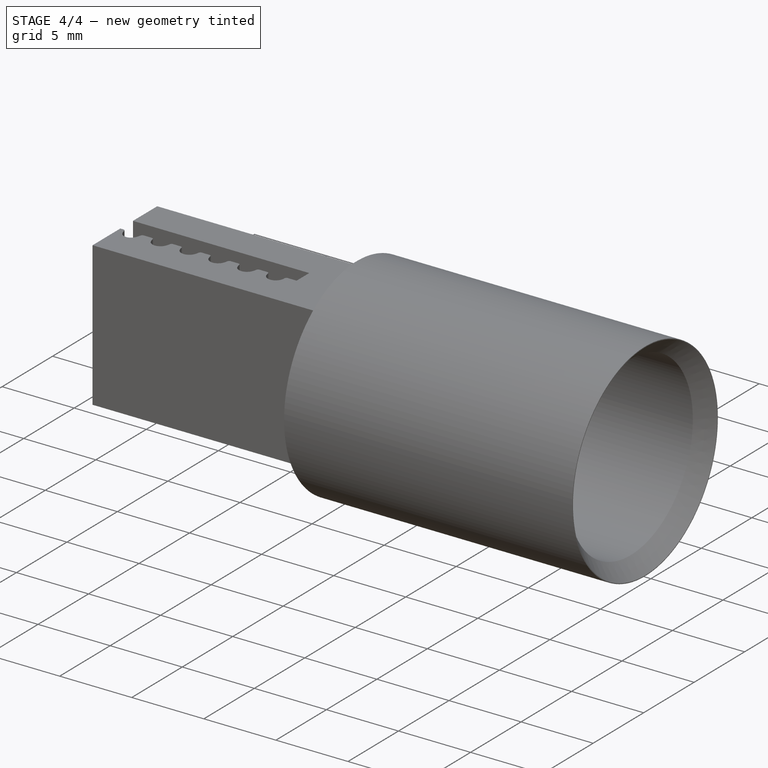
[diagram: stage 4 of 4 — iso view after this stage's code; geometry added in this stage tinted green]
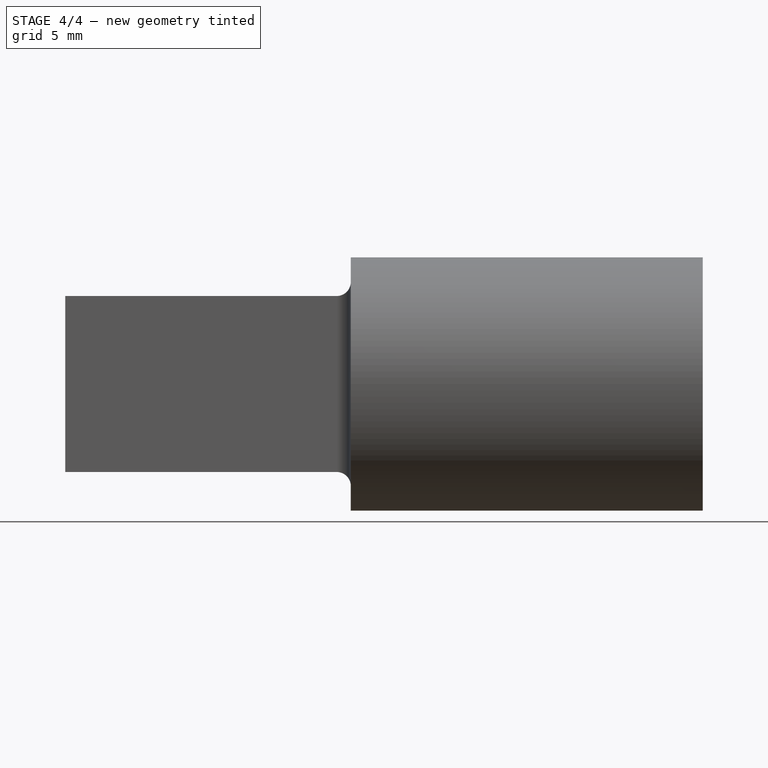
[diagram: stage 4 of 4 — front view after this stage's code; geometry added in this stage tinted green]
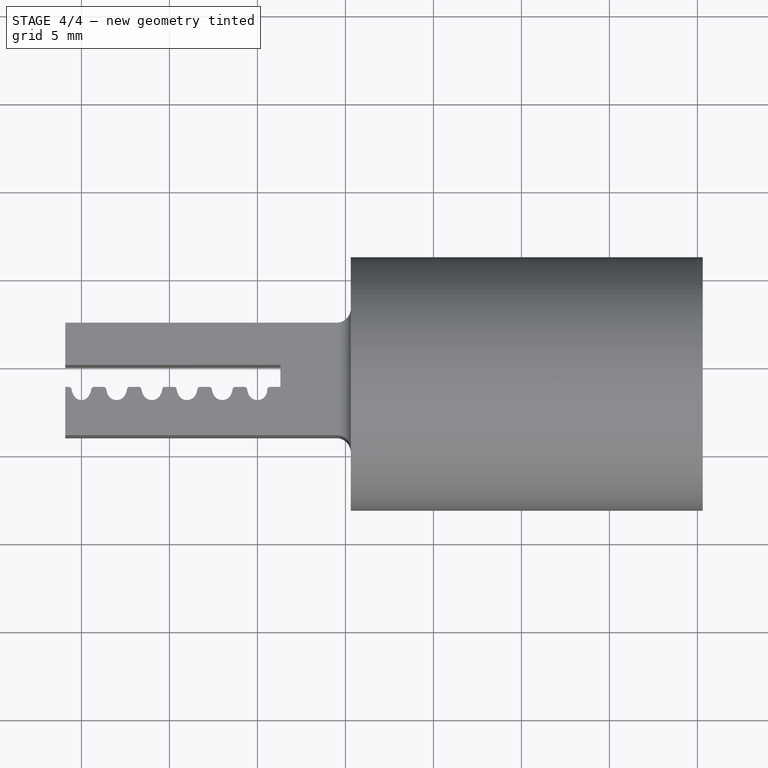
[diagram: stage 4 of 4 — top view after this stage's code; geometry added in this stage tinted green]
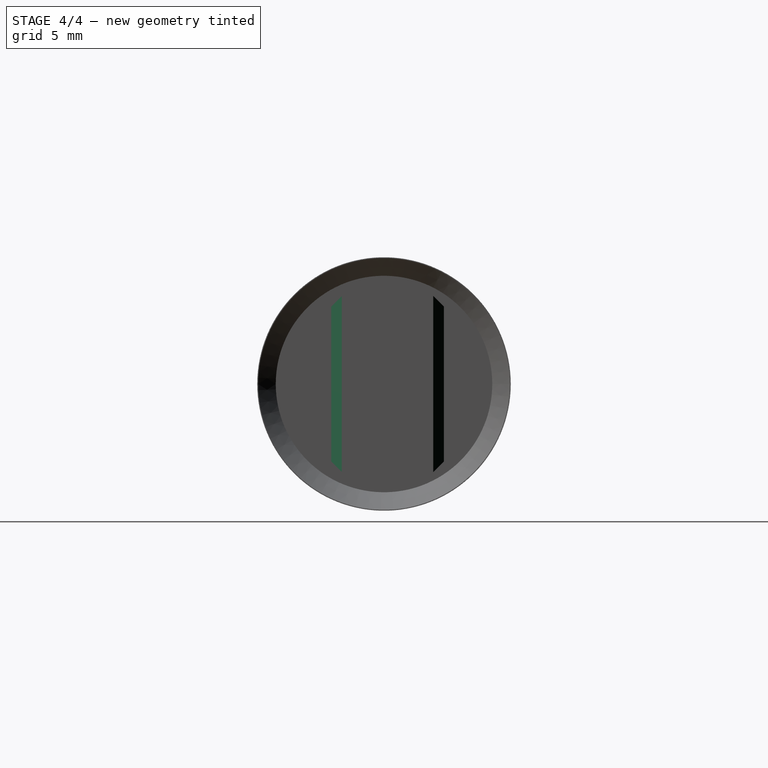
[diagram: stage 4 of 4 — right view after this stage's code; geometry added in this stage tinted green]
FEATURE [Sketcher::SketchObject] Sketch002
  MapMode = 5
  Placement = pos=(-5e-16,2.4,0) rot=(0,0.707107,0.707107;3.14159rad)
  Support = -> [Pad001]
  sketch-geometry (1):
    g0: Circle CenterX=-12 CenterY=0 CenterZ=0 NormalX=0 NormalY=0 NormalZ=1 AngleXU=0 Radius=2
  constraints (3):
    c: PointOnObject(g0,g-1)
    c: Radius(g0) = 2
    c: DistanceX(g-1,g0) = -12
FEATURE [PartDesign::Pocket] Pocket
  BaseFeature = -> Pad001
  Length = 5
  Length2 = 100
  Profile = -> Sketch002
  Type = 1
FEATURE [PartDesign::Chamfer] Chamfer
  Angle = 45
  Base = -> Pocket [Face53,Face17,Face48,Face15]
  BaseFeature = -> Pocket
  ChamferType = 0
  FlipDirection = false
  Size = 0.6
  Size2 = 1
  SupportTransform = false
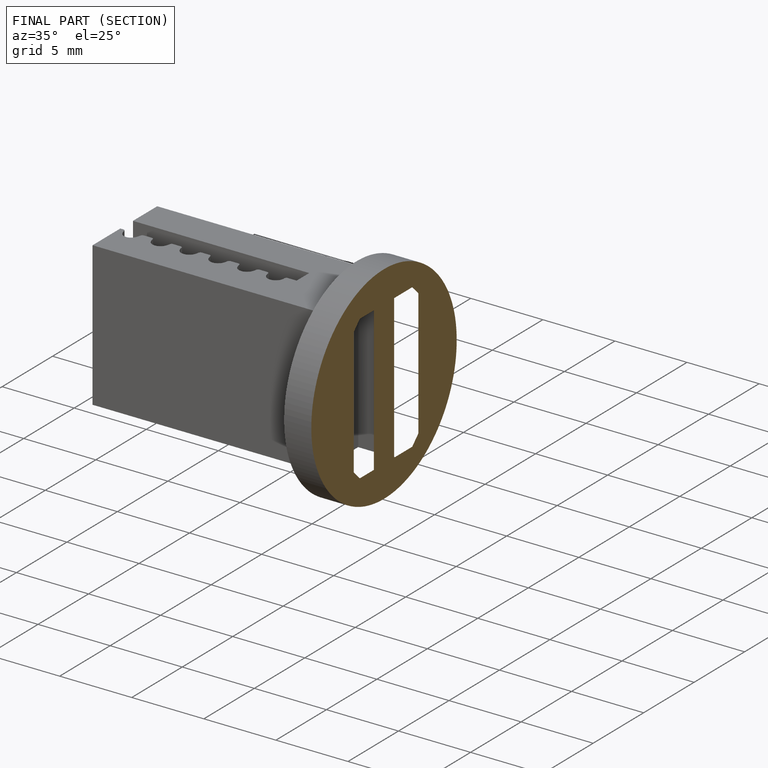
[diagram: finished part — half-section view (interior)]
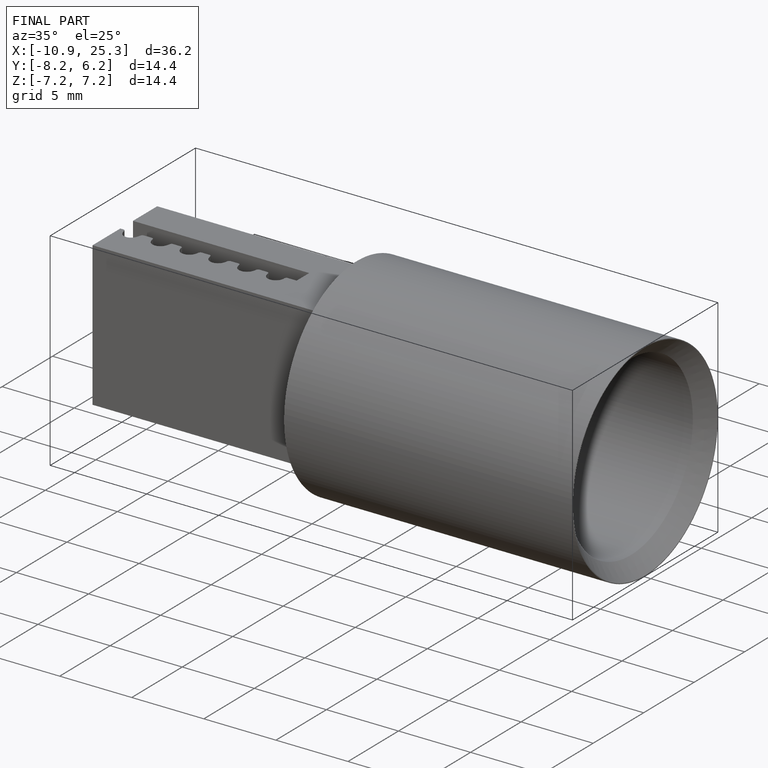
[diagram: finished part — iso view with bounding-box wireframe]
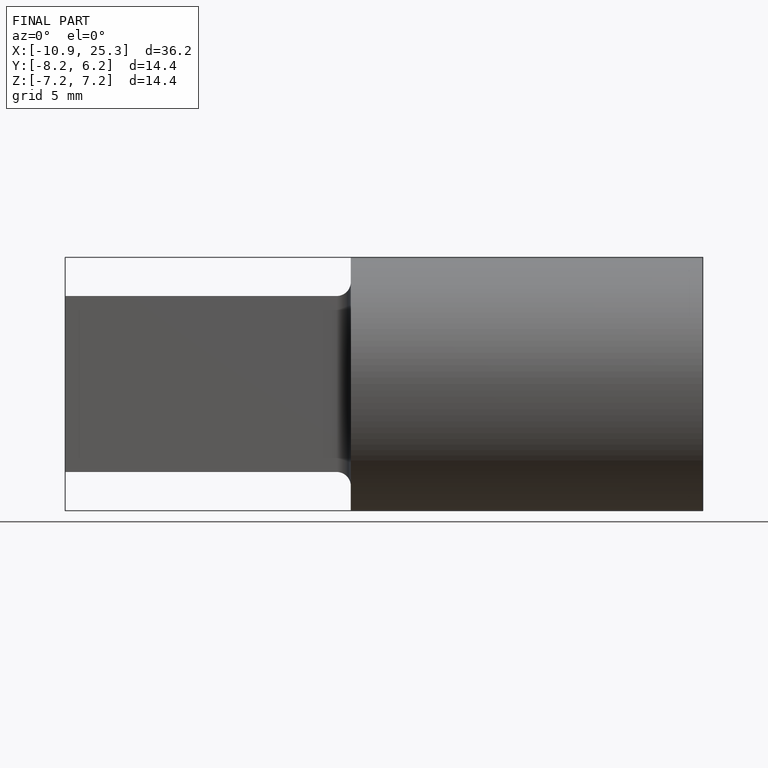
[diagram: finished part — front view with bounding-box wireframe]
